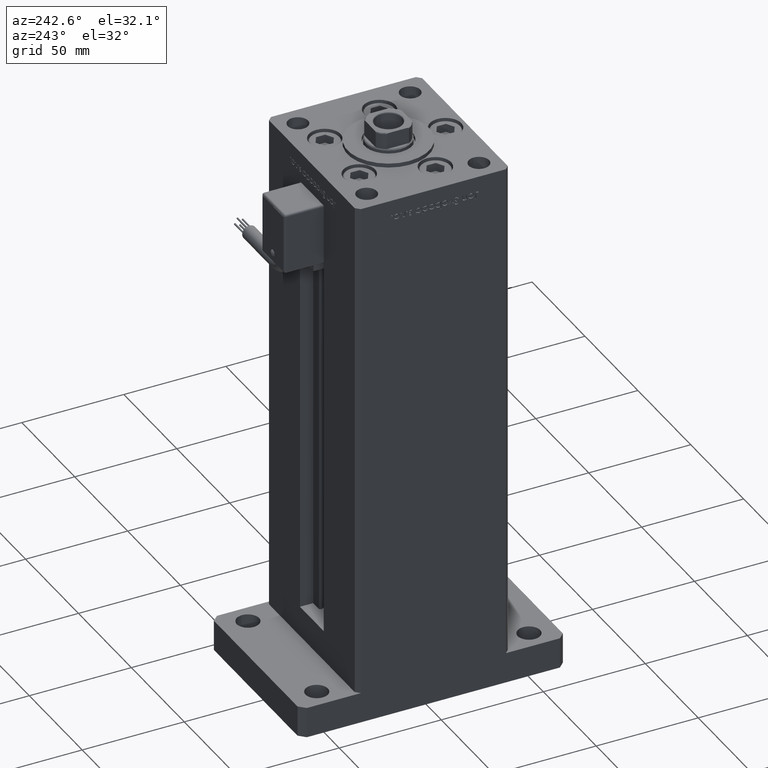
[diagram: clean part render]
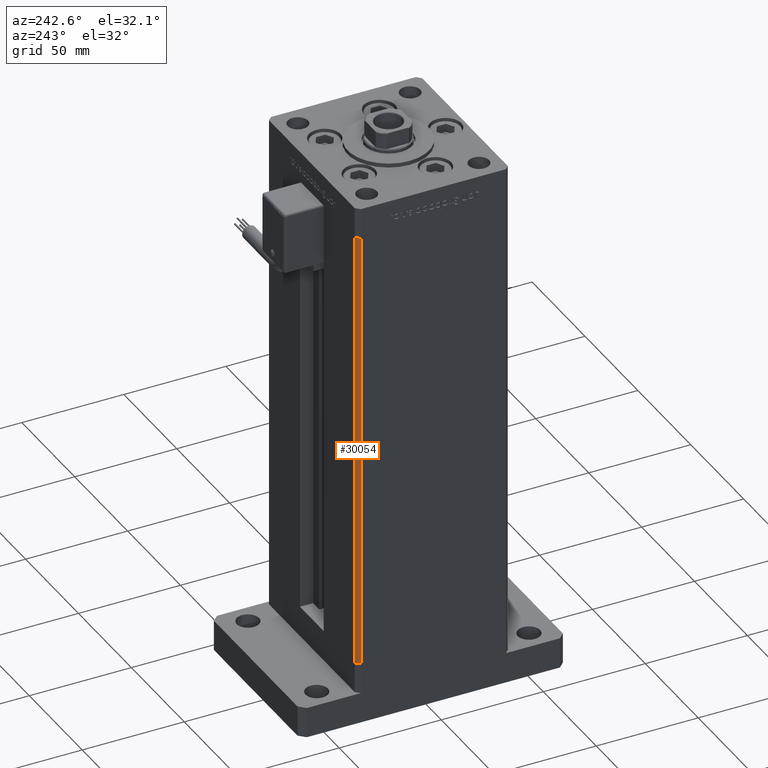
[diagram: same view with one face highlighted and labeled with its STEP entity id]
A machine part, auxiliary view. The second image highlights one B-rep face of the part: STEP entity #30054.
In plain terms, the highlighted planar face has unit normal (0.7071, -0.7071, 0).
Its self-contained STEP definition (entity closure, byte-faithful):
#4518 = LINE ( 'NONE', #17632, #45456 ) ;
#5437 = VERTEX_POINT ( 'NONE', #49764 ) ;
#5944 = DIRECTION ( 'NONE',  ( -0.000000000000000000, -0.000000000000000000, -1.000000000000000000 ) ) ;
#6241 = DIRECTION ( 'NONE',  ( -0.000000000000000000, -0.000000000000000000, -1.000000000000000000 ) ) ;
#9031 = CARTESIAN_POINT ( 'NONE',  ( -40.50000000000000000, 37.50000000000000711, 218.5000000000000000 ) ) ;
#10997 = VERTEX_POINT ( 'NONE', #15393 ) ;
#12057 = VERTEX_POINT ( 'NONE', #55238 ) ;
#15354 = EDGE_CURVE ( 'NONE', #10997, #12057, #44958, .T. ) ;
#15393 = CARTESIAN_POINT ( 'NONE',  ( -40.50000000000000000, 37.50000000000000711, 218.5000000000000000 ) ) ;
#17632 = CARTESIAN_POINT ( 'NONE',  ( -40.50000000000000000, 37.50000000000000711, 0.000000000000000000 ) ) ;
#18145 = DIRECTION ( 'NONE',  ( 0.7071067811865500152, 0.7071067811865450192, 0.000000000000000000 ) ) ;
#18313 = LINE ( 'NONE', #40203, #28874 ) ;
#20579 = EDGE_CURVE ( 'NONE', #10997, #5437, #18313, .T. ) ;
#22570 = DIRECTION ( 'NONE',  ( -0.7071067811865500152, -0.7071067811865451302, 0.000000000000000000 ) ) ;
#22995 = ORIENTED_EDGE ( 'NONE', *, *, #15354, .T. ) ;
#26242 = EDGE_CURVE ( 'NONE', #12057, #46244, #4518, .T. ) ;
#27302 = CARTESIAN_POINT ( 'NONE',  ( -40.50000000000000000, 37.50000000000000711, 218.5000000000000000 ) ) ;
#28874 = VECTOR ( 'NONE', #22570, 1000.000000000000114 ) ;
#30054 = ADVANCED_FACE ( 'NONE', ( #53139 ), #48014, .F. ) ;
#34943 = DIRECTION ( 'NONE',  ( 0.7071067811865450192, -0.7071067811865500152, 0.000000000000000000 ) ) ;
#36338 = VECTOR ( 'NONE', #5944, 1000.000000000000000 ) ;
#38841 = ORIENTED_EDGE ( 'NONE', *, *, #20579, .F. ) ;
#39798 = DIRECTION ( 'NONE',  ( -0.7071067811865500152, -0.7071067811865451302, 0.000000000000000000 ) ) ;
#40203 = CARTESIAN_POINT ( 'NONE',  ( -40.50000000000000000, 37.50000000000000711, 218.5000000000000000 ) ) ;
#40921 = LINE ( 'NONE', #49465, #36338 ) ;
#40992 = ORIENTED_EDGE ( 'NONE', *, *, #26242, .T. ) ;
#41215 = CARTESIAN_POINT ( 'NONE',  ( -42.50000000000000711, 35.50000000000001421, 0.000000000000000000 ) ) ;
#42134 = VECTOR ( 'NONE', #6241, 1000.000000000000000 ) ;
#44552 = AXIS2_PLACEMENT_3D ( 'NONE', #9031, #34943, #18145 ) ;
#44958 = LINE ( 'NONE', #27302, #42134 ) ;
#45456 = VECTOR ( 'NONE', #39798, 1000.000000000000114 ) ;
#46244 = VERTEX_POINT ( 'NONE', #41215 ) ;
#48014 = PLANE ( 'NONE',  #44552 ) ;
#49465 = CARTESIAN_POINT ( 'NONE',  ( -42.50000000000000711, 35.50000000000001421, 218.5000000000000000 ) ) ;
#49764 = CARTESIAN_POINT ( 'NONE',  ( -42.50000000000000711, 35.50000000000001421, 218.5000000000000000 ) ) ;
#51232 = EDGE_CURVE ( 'NONE', #5437, #46244, #40921, .T. ) ;
#53139 = FACE_OUTER_BOUND ( 'NONE', #55951, .T. ) ;
#55238 = CARTESIAN_POINT ( 'NONE',  ( -40.50000000000000000, 37.50000000000000711, 0.000000000000000000 ) ) ;
#55951 = EDGE_LOOP ( 'NONE', ( #40992, #56065, #38841, #22995 ) ) ;
#56065 = ORIENTED_EDGE ( 'NONE', *, *, #51232, .F. ) ;